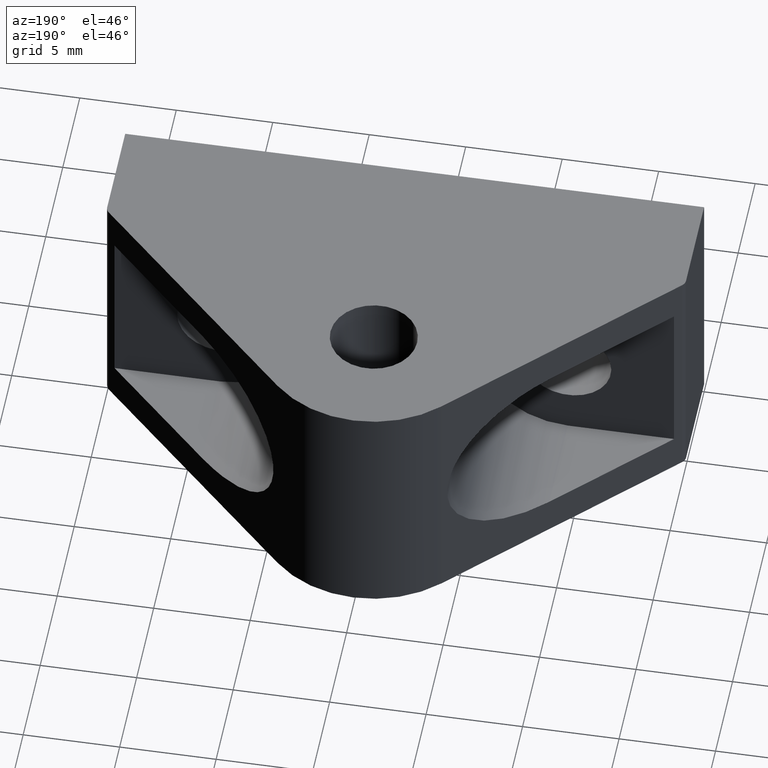
[diagram: clean part render]
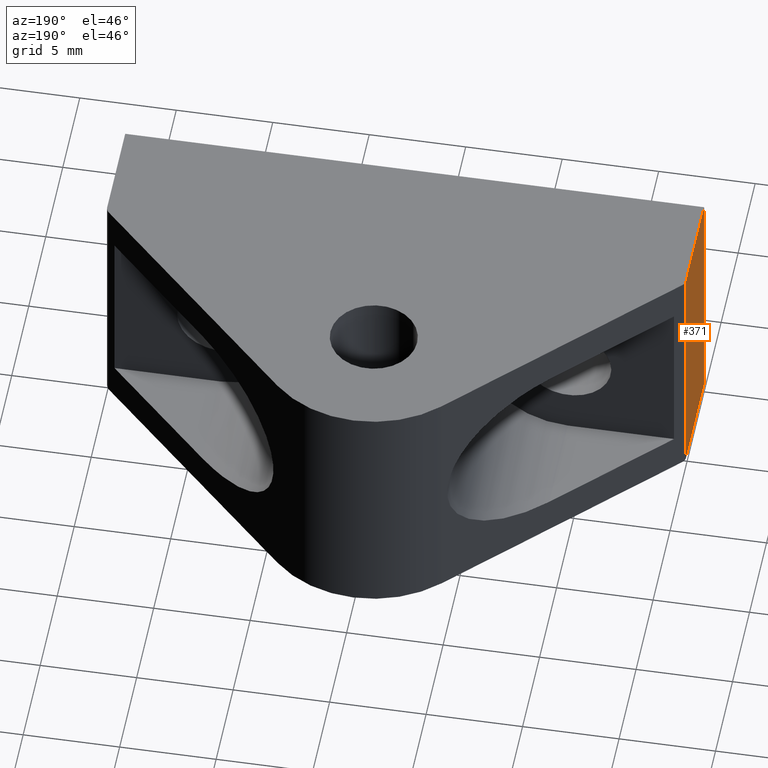
[diagram: same view with one face highlighted and labeled with its STEP entity id]
A machine part, auxiliary view. The second image highlights one B-rep face of the part: STEP entity #371.
In plain terms, the highlighted planar face has unit normal (-1, -0, 0).
Its self-contained STEP definition (entity closure, byte-faithful):
#63=FACE_OUTER_BOUND('',#90,.T.);
#90=EDGE_LOOP('',(#297,#298,#299,#300));
#122=LINE('',#597,#154);
#123=LINE('',#600,#155);
#124=LINE('',#602,#156);
#125=LINE('',#603,#157);
#154=VECTOR('',#489,13.);
#155=VECTOR('',#492,5.29289321881346);
#156=VECTOR('',#493,13.);
#157=VECTOR('',#494,5.29289321881346);
#189=VERTEX_POINT('',#590);
#192=VERTEX_POINT('',#595);
#193=VERTEX_POINT('',#599);
#194=VERTEX_POINT('',#601);
#232=EDGE_CURVE('',#192,#189,#122,.T.);
#233=EDGE_CURVE('',#192,#193,#123,.T.);
#234=EDGE_CURVE('',#193,#194,#124,.T.);
#235=EDGE_CURVE('',#189,#194,#125,.T.);
#297=ORIENTED_EDGE('',*,*,#232,.F.);
#298=ORIENTED_EDGE('',*,*,#233,.T.);
#299=ORIENTED_EDGE('',*,*,#234,.T.);
#300=ORIENTED_EDGE('',*,*,#235,.F.);
#352=PLANE('',#406);
#371=ADVANCED_FACE('',(#63),#352,.T.);
#406=AXIS2_PLACEMENT_3D('',#598,#490,#491);
#489=DIRECTION('',(0.,0.,1.));
#490=DIRECTION('center_axis',(-1.,-4.03717463500057E-16,0.));
#491=DIRECTION('ref_axis',(4.03717463500057E-16,-1.,0.));
#492=DIRECTION('',(4.03717463500057E-16,-1.,0.));
#493=DIRECTION('',(0.,0.,1.));
#494=DIRECTION('',(4.03717463500057E-16,-1.,0.));
#590=CARTESIAN_POINT('',(-2.13683342487602E-15,5.29289321881346,13.));
#595=CARTESIAN_POINT('',(-2.13683342487602E-15,5.29289321881346,0.));
#597=CARTESIAN_POINT('',(-2.15105711021124E-15,5.29289321881346,0.));
#598=CARTESIAN_POINT('Origin',(-2.22044604925031E-15,5.5,0.));
#599=CARTESIAN_POINT('',(0.,0.,0.));
#600=CARTESIAN_POINT('',(-2.22044604925031E-15,5.5,0.));
#601=CARTESIAN_POINT('',(0.,0.,13.));
#602=CARTESIAN_POINT('',(0.,0.,0.));
#603=CARTESIAN_POINT('',(-2.22044604925031E-15,5.5,13.));